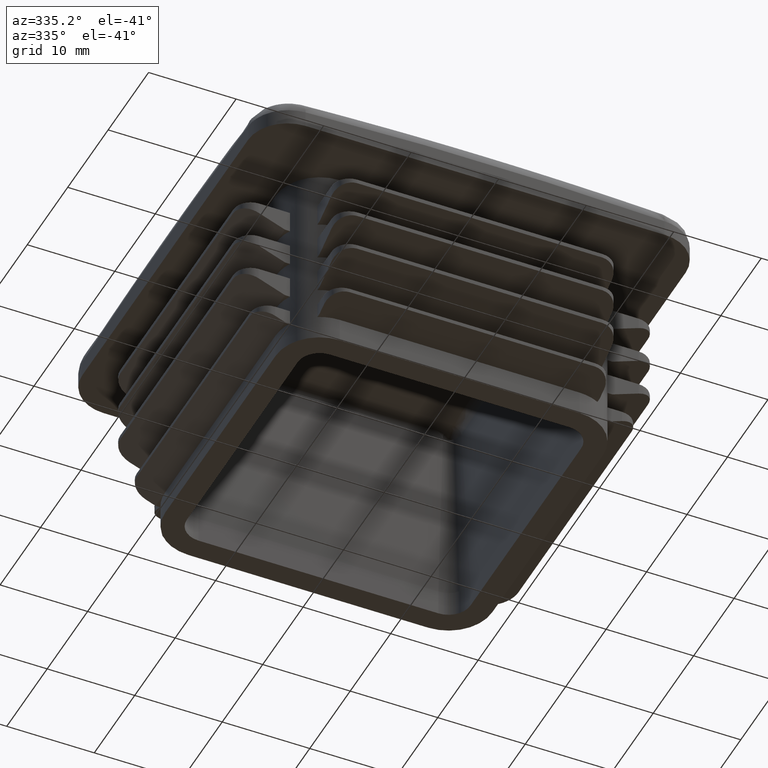
[diagram: clean part render]
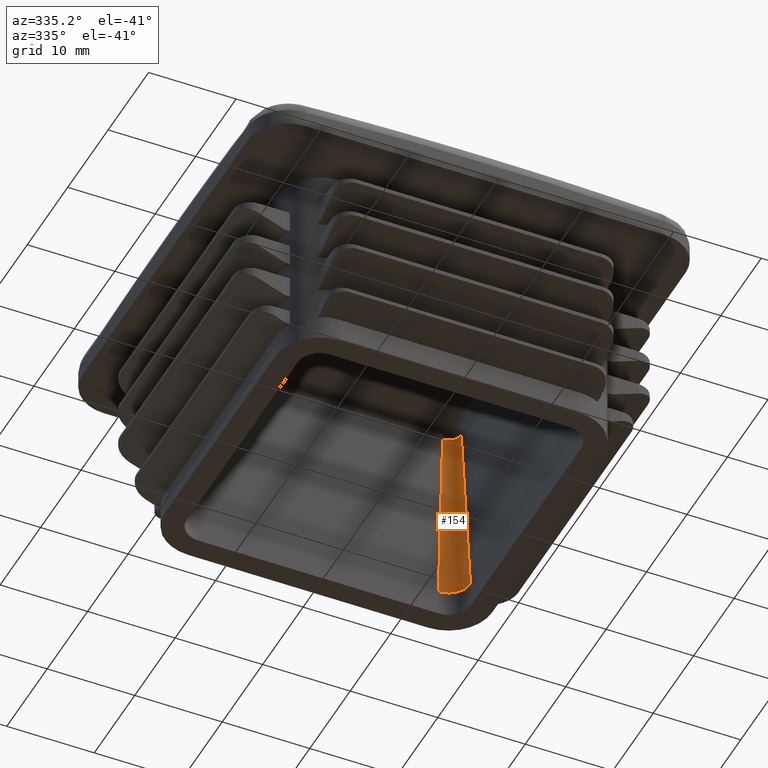
[diagram: same view with one face highlighted and labeled with its STEP entity id]
A machine part, auxiliary view. The second image highlights one B-rep face of the part: STEP entity #154.
In plain terms, the highlighted conical surface has half-angle 3 deg.
Its self-contained STEP definition (entity closure, byte-faithful):
#154 = ADVANCED_FACE( '', ( #519 ), #520, .F. );
#519 = FACE_OUTER_BOUND( '', #2979, .T. );
#520 = CONICAL_SURFACE( '', #2980, 2.50000000000000, 0.0523598775598299 );
#2979 = EDGE_LOOP( '', ( #3995, #3996, #3997, #3998 ) );
#2980 = AXIS2_PLACEMENT_3D( '', #3999, #4000, #4001 );
#3995 = ORIENTED_EDGE( '', *, *, #5826, .F. );
#3996 = ORIENTED_EDGE( '', *, *, #5814, .T. );
#3997 = ORIENTED_EDGE( '', *, *, #5828, .T. );
#3998 = ORIENTED_EDGE( '', *, *, #5829, .F. );
#3999 = CARTESIAN_POINT( '', ( 13.7000000000000, 13.7000000000000, 3.00000000000000 ) );
#4000 = DIRECTION( '', ( 0.000000000000000, 0.000000000000000, -1.00000000000000 ) );
#4001 = DIRECTION( '', ( 1.00000000000000, 0.000000000000000, 0.000000000000000 ) );
#5814 = EDGE_CURVE( '', #6659, #6669, #6671, .T. );
#5826 = EDGE_CURVE( '', #6659, #6685, #6686, .T. );
#5828 = EDGE_CURVE( '', #6669, #6688, #6689, .T. );
#5829 = EDGE_CURVE( '', #6685, #6688, #6690, .T. );
#6659 = VERTEX_POINT( '', #9372 );
#6669 = VERTEX_POINT( '', #9483 );
#6671 = B_SPLINE_CURVE_WITH_KNOTS( '', 3, ( #9485, #9486, #9487, #9488, #9489, #9490, #9491, #9492, #9493, #9494, #9495, #9496, #9497, #9498, #9499, #9500, #9501, #9502, #9503, #9504, #9505, #9506, #9507, #9508, #9509, #9510, #9511, #9512, #9513, #9514, #9515, #9516, #9517, #9518, #9519, #9520, #9521, #9522, #9523, #9524, #9525 ), .UNSPECIFIED., .F., .F., ( 4, 1, 1, 2, 2, 2, 2, 1, 2, 1, 2, 2, 1, 1, 2, 2, 2, 2, 1, 2, 2, 2, 1, 1, 4 ), ( 0.000000000000000, 0.000141302402886821, 0.000282604805773642, 0.000423907208660463, 0.000459232809382168, 0.000494558410103873, 0.000565209611547291, 0.000706512014434123, 0.000847814417320955, 0.000918465618764372, 0.000953791219486080, 0.000989116820207788, 0.00113041922309461, 0.00127172162598144, 0.00141302402886827, 0.00144834962958997, 0.00148367523031168, 0.00155432643175510, 0.00169562883464194, 0.00183693123752877, 0.00190758243897219, 0.00194290803969390, 0.00197823364041561, 0.00211953604330245, 0.00226083844618929 ), .UNSPECIFIED. );
#6685 = VERTEX_POINT( '', #9631 );
#6686 = LINE( '', #9632, #9633 );
#6688 = VERTEX_POINT( '', #9636 );
#6689 = LINE( '', #9637, #9638 );
#6690 = CIRCLE( '', #9639, 2.50000000000000 );
#9372 = CARTESIAN_POINT( '', ( 15.1469690511856, 13.7000000000000, 23.0930274707362 ) );
#9483 = CARTESIAN_POINT( '', ( 13.7000000000000, 15.1469690511856, 23.0930274707361 ) );
#9485 = CARTESIAN_POINT( '', ( 15.1469690511856, 13.7000000000000, 23.0930274707362 ) );
#9486 = CARTESIAN_POINT( '', ( 15.1469951091891, 13.7477736779207, 23.0925302544094 ) );
#9487 = CARTESIAN_POINT( '', ( 15.1423250096965, 13.8425215886857, 23.0915931129227 ) );
#9488 = CARTESIAN_POINT( '', ( 15.1216416569144, 13.9823278113837, 23.0903534728748 ) );
#9489 = CARTESIAN_POINT( '', ( 15.0987899434632, 14.0739976771590, 23.0896371605087 ) );
#9490 = CARTESIAN_POINT( '', ( 15.0816105423958, 14.1308008842030, 23.0892246886099 ) );
#9491 = CARTESIAN_POINT( '', ( 15.0780294734810, 14.1421369459968, 23.0891439594594 ) );
#9492 = CARTESIAN_POINT( '', ( 15.0705739518637, 14.1647594013955, 23.0889860687198 ) );
#9493 = CARTESIAN_POINT( '', ( 15.0666939089550, 14.1760611555961, 23.0889088054132 ) );
#9494 = CARTESIAN_POINT( '', ( 15.0546538162652, 14.2097653307790, 23.0886832678228 ) );
#9495 = CARTESIAN_POINT( '', ( 15.0461036966802, 14.2319458091363, 23.0885413600260 ) );
#9496 = CARTESIAN_POINT( '', ( 15.0189148067231, 14.2976377990405, 23.0881404834258 ) );
#9497 = CARTESIAN_POINT( '', ( 14.9785675027808, 14.3829659617975, 23.0876721219370 ) );
#9498 = CARTESIAN_POINT( '', ( 14.9301799414598, 14.4638549832592, 23.0873336615352 ) );
#9499 = CARTESIAN_POINT( '', ( 14.8908430428326, 14.5228398835015, 23.0871290468863 ) );
#9500 = CARTESIAN_POINT( '', ( 14.8704117048507, 14.5519111318756, 23.0870390686725 ) );
#9501 = CARTESIAN_POINT( '', ( 14.8488174821824, 14.5803403349883, 23.0869678859676 ) );
#9502 = CARTESIAN_POINT( '', ( 14.8341599107170, 14.5991488016773, 23.0869246563372 ) );
#9503 = CARTESIAN_POINT( '', ( 14.8266944318041, 14.6084876199441, 23.0869051462482 ) );
#9504 = CARTESIAN_POINT( '', ( 14.7889155631060, 14.6545660726870, 23.0868187089743 ) );
#9505 = CARTESIAN_POINT( '', ( 14.7252977081543, 14.7247449461732, 23.0867503761727 ) );
#9506 = CARTESIAN_POINT( '', ( 14.6206462056316, 14.8196978978954, 23.0868513862663 ) );
#9507 = CARTESIAN_POINT( '', ( 14.5447417154490, 14.8761374876036, 23.0870541045356 ) );
#9508 = CARTESIAN_POINT( '', ( 14.4953318403623, 14.9092098004035, 23.0872242444439 ) );
#9509 = CARTESIAN_POINT( '', ( 14.4853511506731, 14.9157138772592, 23.0872604496641 ) );
#9510 = CARTESIAN_POINT( '', ( 14.4651900847148, 14.9284987354535, 23.0873372640934 ) );
#9511 = CARTESIAN_POINT( '', ( 14.4550292183737, 14.9347667666469, 23.0873778029061 ) );
#9512 = CARTESIAN_POINT( '', ( 14.4244056238105, 14.9531401990626, 23.0875053707277 ) );
#9513 = CARTESIAN_POINT( '', ( 14.4037623586294, 14.9648404806281, 23.0875984969256 ) );
#9514 = CARTESIAN_POINT( '', ( 14.3411622763438, 14.9983250126067, 23.0879016768734 ) );
#9515 = CARTESIAN_POINT( '', ( 14.2559112331779, 15.0386685188536, 23.0883692750857 ) );
#9516 = CARTESIAN_POINT( '', ( 14.1671428387232, 15.0705303727662, 23.0889617198642 ) );
#9517 = CARTESIAN_POINT( '', ( 14.0992284951236, 15.0912002288832, 23.0894535224671 ) );
#9518 = CARTESIAN_POINT( '', ( 14.0763669772123, 15.0975514717016, 23.0896253821510 ) );
#9519 = CARTESIAN_POINT( '', ( 14.0417334564269, 15.1062554690791, 23.0898952742313 ) );
#9520 = CARTESIAN_POINT( '', ( 14.0301229250687, 15.1090216243609, 23.0899873301088 ) );
#9521 = CARTESIAN_POINT( '', ( 14.0068281065460, 15.1142669838751, 23.0901751909256 ) );
#9522 = CARTESIAN_POINT( '', ( 13.9485077205847, 15.1266401619701, 23.0906534016073 ) );
#9523 = CARTESIAN_POINT( '', ( 13.8427893312601, 15.1423241711344, 23.0915903363533 ) );
#9524 = CARTESIAN_POINT( '', ( 13.7477736964496, 15.1469951091992, 23.0925302542165 ) );
#9525 = CARTESIAN_POINT( '', ( 13.7000000000000, 15.1469690511856, 23.0930274707362 ) );
#9631 = CARTESIAN_POINT( '', ( 16.2000000000000, 13.7000000000000, 3.00000000000000 ) );
#9632 = CARTESIAN_POINT( '', ( 16.2000000000000, 13.7000000000000, 3.00000000000000 ) );
#9633 = VECTOR( '', #10925, 1000.00000000000 );
#9636 = CARTESIAN_POINT( '', ( 13.7000000000000, 16.2000000000000, 3.00000000000000 ) );
#9637 = CARTESIAN_POINT( '', ( 13.7000000000000, 16.2000000000000, 3.00000000000000 ) );
#9638 = VECTOR( '', #10927, 1000.00000000000 );
#9639 = AXIS2_PLACEMENT_3D( '', #10928, #10929, #10930 );
#10925 = DIRECTION( '', ( 0.0523359562429438, -7.26307295458637E-017, -0.998629534754574 ) );
#10927 = DIRECTION( '', ( 0.000000000000000, 0.0523359562429438, -0.998629534754574 ) );
#10928 = CARTESIAN_POINT( '', ( 13.7000000000000, 13.7000000000000, 3.00000000000000 ) );
#10929 = DIRECTION( '', ( 0.000000000000000, 0.000000000000000, 1.00000000000000 ) );
#10930 = DIRECTION( '', ( 1.00000000000000, -1.38777878078144E-015, 0.000000000000000 ) );